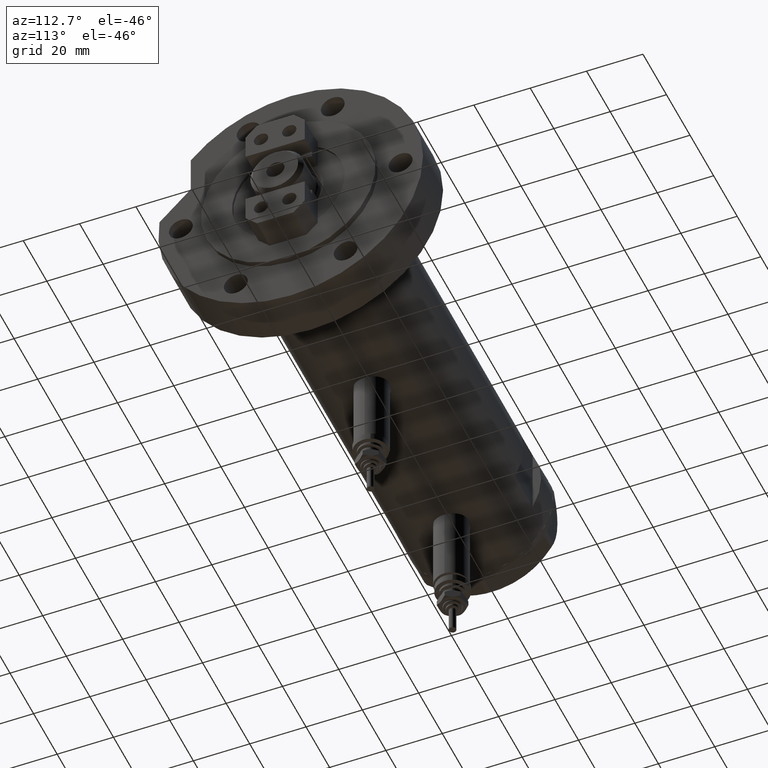
[diagram: clean part render]
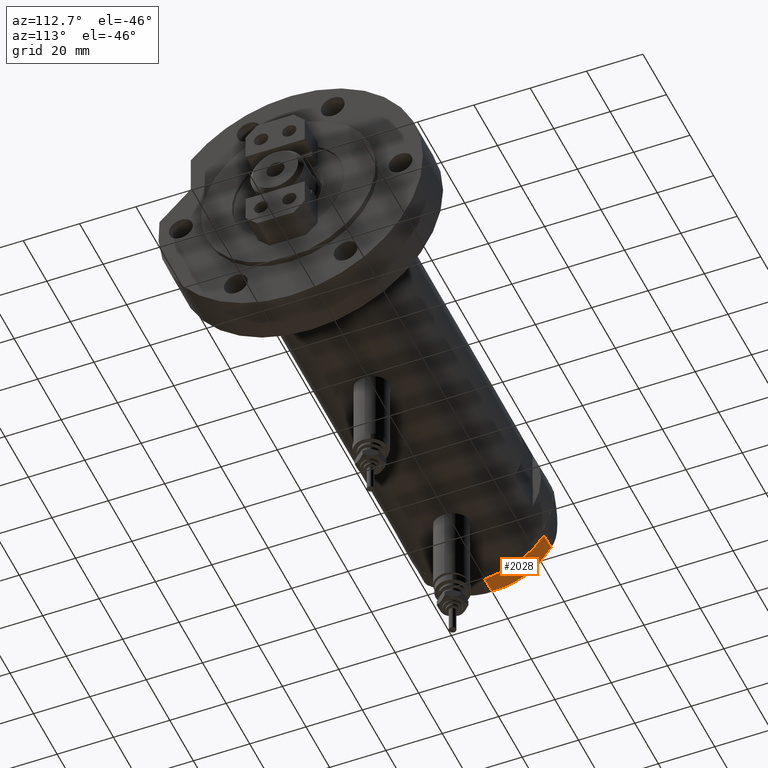
[diagram: same view with one face highlighted and labeled with its STEP entity id]
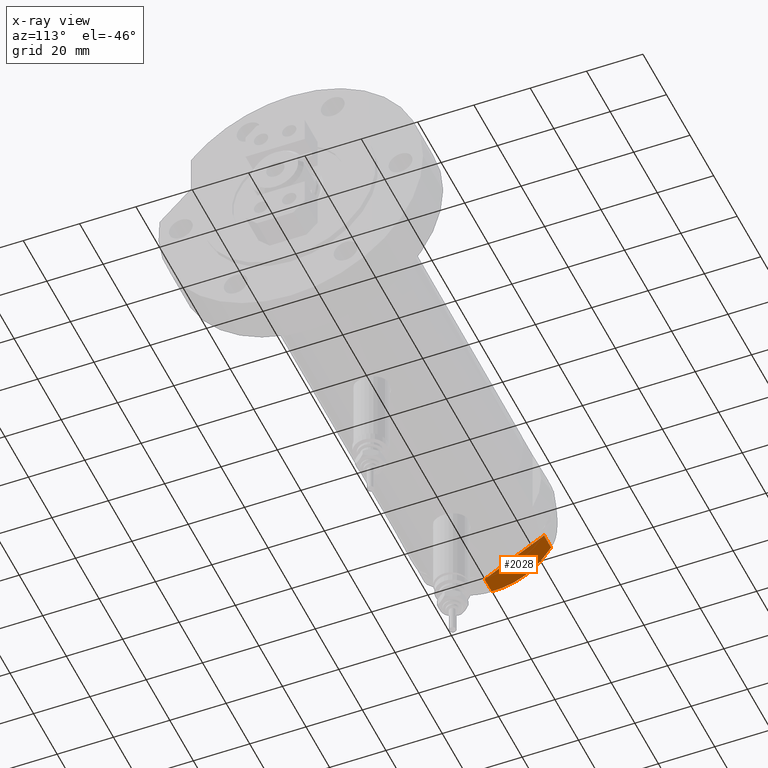
[diagram: x-ray of the same camera — body ghosted, the highlighted face saturated]
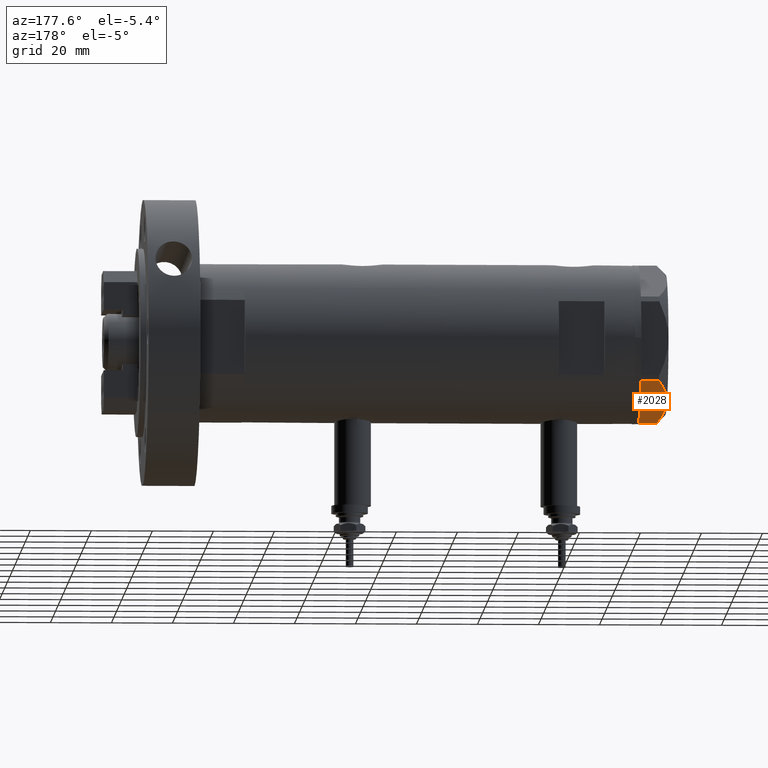
[diagram: same view with one face highlighted and labeled with its STEP entity id]
A machine part, auxiliary view. The second image highlights one B-rep face of the part: STEP entity #2028.
The next image is the same camera in x-ray: the body ghosted, the highlighted face saturated — about 0% of this face is hidden behind the body in this view.
A second angle (auxiliary view) of the same face is appended — the face is thin or edge-on in the first view.
In plain terms, the highlighted planar face has unit normal (0, -0.5, 0.866).
Its self-contained STEP definition (entity closure, byte-faithful):
#5 = CARTESIAN_POINT ( 'NONE',  ( 15.16323225988329959, 17.80361615569442790, 8.637313967156861949 ) ) ;
#106 = CARTESIAN_POINT ( 'NONE',  ( 22.99999999999981171, 13.27905619136164184, 0.000000000000000000 ) ) ;
#158 = CARTESIAN_POINT ( 'NONE',  ( 5.229981517798067081, 23.53858114556529912, 7.892128867758392730 ) ) ;
#159 = DIRECTION ( 'NONE',  ( 0.000000000000000000, 0.000000000000000000, 1.000000000000000000 ) ) ;
#458 = VECTOR ( 'NONE', #6216, 999.9999999999998863 ) ;
#518 = EDGE_CURVE ( 'NONE', #7526, #3192, #2818, .T. ) ;
#575 = AXIS2_PLACEMENT_3D ( 'NONE', #2478, #6710, #3245 ) ;
#617 = CARTESIAN_POINT ( 'NONE',  ( 7.884645426989626671, 22.00591022298560517, 8.707651728476925257 ) ) ;
#644 = CARTESIAN_POINT ( 'NONE',  ( 20.37350567916420019, 14.79546339452108050, 6.877782426143415506 ) ) ;
#656 = ORIENTED_EDGE ( 'NONE', *, *, #2633, .T. ) ;
#827 = LINE ( 'NONE', #106, #458 ) ;
#976 = VERTEX_POINT ( 'NONE', #4671 ) ;
#1235 = LINE ( 'NONE', #6672, #1868 ) ;
#1393 = CARTESIAN_POINT ( 'NONE',  ( 18.67981377008996446, 15.77331687414937278, 7.629374868826049649 ) ) ;
#1868 = VECTOR ( 'NONE', #7391, 999.9999999999998863 ) ;
#1963 = CARTESIAN_POINT ( 'NONE',  ( 22.03005154776138852, 13.83905619136154819, 5.983800287807532037 ) ) ;
#2017 = CARTESIAN_POINT ( 'NONE',  ( 12.41906678023027588, 19.38796083407295967, 8.981686407609410949 ) ) ;
#2028 = ADVANCED_FACE ( 'NONE', ( #7113 ), #6586, .F. ) ;
#2119 = LINE ( 'NONE', #6089, #2191 ) ;
#2191 = VECTOR ( 'NONE', #6766, 999.9999999999998863 ) ;
#2209 = CARTESIAN_POINT ( 'NONE',  ( 0.9699484522385767304, 25.99811238272274849, 5.983800287807627960 ) ) ;
#2478 = CARTESIAN_POINT ( 'NONE',  ( 22.99999999999981171, 13.27905619136164184, 9.000000000000000000 ) ) ;
#2633 = EDGE_CURVE ( 'NONE', #6245, #4212, #4809, .T. ) ;
#2664 = CARTESIAN_POINT ( 'NONE',  ( 13.34348161667005073, 18.85424967941157703, 8.907842277728345692 ) ) ;
#2818 = LINE ( 'NONE', #8220, #7503 ) ;
#2895 = CARTESIAN_POINT ( 'NONE',  ( 3.925137811030050994, 24.29193301091819635, 7.397272853991373687 ) ) ;
#3101 = EDGE_CURVE ( 'NONE', #3125, #976, #827, .T. ) ;
#3125 = VERTEX_POINT ( 'NONE', #8658 ) ;
#3136 = CARTESIAN_POINT ( 'NONE',  ( 22.03005154776124286, 13.83905619136163168, 0.000000000000000000 ) ) ;
#3154 = ORIENTED_EDGE ( 'NONE', *, *, #4234, .T. ) ;
#3192 = VERTEX_POINT ( 'NONE', #3136 ) ;
#3245 = DIRECTION ( 'NONE',  ( 0.8660254037844415942, -0.4999999999999949485, 0.000000000000000000 ) ) ;
#3267 = ORIENTED_EDGE ( 'NONE', *, *, #3101, .T. ) ;
#3811 = ORIENTED_EDGE ( 'NONE', *, *, #6466, .F. ) ;
#4178 = CARTESIAN_POINT ( 'NONE',  ( 2.640413878806739945, 25.03366871902167290, 6.844201024438365089 ) ) ;
#4212 = VERTEX_POINT ( 'NONE', #8002 ) ;
#4234 = EDGE_CURVE ( 'NONE', #3192, #3125, #1235, .T. ) ;
#4269 = CARTESIAN_POINT ( 'NONE',  ( 0.9699484522385816154, 25.99811238272274494, 0.000000000000000000 ) ) ;
#4671 = CARTESIAN_POINT ( 'NONE',  ( 0.9999999999999297229, 25.98076211353316722, 0.000000000000000000 ) ) ;
#4696 = CARTESIAN_POINT ( 'NONE',  ( 11.95865151389051917, 19.65378171203322566, 9.000000000000005329 ) ) ;
#4809 = LINE ( 'NONE', #5499, #5659 ) ;
#4860 = DIRECTION ( 'NONE',  ( 0.000000000000000000, 0.000000000000000000, -1.000000000000000000 ) ) ;
#4916 = ORIENTED_EDGE ( 'NONE', *, *, #6933, .F. ) ;
#5497 = CARTESIAN_POINT ( 'NONE',  ( 1.799196345396824492, 25.51934588838292228, 6.431317509509382191 ) ) ;
#5499 = CARTESIAN_POINT ( 'NONE',  ( 0.9699484522385816154, 25.99811238272274494, 9.000000000000000000 ) ) ;
#5534 = CARTESIAN_POINT ( 'NONE',  ( 4.357207709416038632, 24.04247733877631532, 7.570552255229681116 ) ) ;
#5659 = VECTOR ( 'NONE', #159, 1000.000000000000000 ) ;
#5673 = B_SPLINE_CURVE_WITH_KNOTS ( 'NONE', 3,
 ( #5947, #644, #1393, #8612, #5, #7973, #2664, #2017, #4696, #7406 ),
 .UNSPECIFIED., .F., .F.,
 ( 4, 2, 2, 2, 4 ),
 ( 0.001228959670438493522, 0.007497079744270714746, 0.01063113978118682655, 0.01219816979964488159, 0.01376519981810293489 ),
 .UNSPECIFIED. ) ;
#5753 = CARTESIAN_POINT ( 'NONE',  ( 11.49999999999990408, 19.91858428704219364, 9.000000000000000000 ) ) ;
#5760 = ORIENTED_EDGE ( 'NONE', *, *, #518, .T. ) ;
#5918 = EDGE_LOOP ( 'NONE', ( #3811, #5760, #3154, #3267, #7045, #656, #4916 ) ) ;
#5947 = CARTESIAN_POINT ( 'NONE',  ( 22.03005154776138852, 13.83905619136154819, 5.983800287807532037 ) ) ;
#6089 = CARTESIAN_POINT ( 'NONE',  ( 22.99999999999981171, 13.27905619136164184, 0.000000000000000000 ) ) ;
#6216 = DIRECTION ( 'NONE',  ( -0.8660254037844415942, 0.4999999999999949485, 0.000000000000000000 ) ) ;
#6245 = VERTEX_POINT ( 'NONE', #4269 ) ;
#6466 = EDGE_CURVE ( 'NONE', #7526, #6807, #5673, .T. ) ;
#6586 = PLANE ( 'NONE',  #575 ) ;
#6664 = CARTESIAN_POINT ( 'NONE',  ( 9.678244919010086988, 20.97037507344920826, 9.000000000000001776 ) ) ;
#6672 = CARTESIAN_POINT ( 'NONE',  ( 22.99999999999981171, 13.27905619136164184, 0.000000000000000000 ) ) ;
#6710 = DIRECTION ( 'NONE',  ( -0.4999999999999949485, -0.8660254037844415942, 0.000000000000000000 ) ) ;
#6766 = DIRECTION ( 'NONE',  ( -0.8660254037844415942, 0.4999999999999949485, 0.000000000000000000 ) ) ;
#6807 = VERTEX_POINT ( 'NONE', #5753 ) ;
#6933 = EDGE_CURVE ( 'NONE', #6807, #4212, #7553, .T. ) ;
#7045 = ORIENTED_EDGE ( 'NONE', *, *, #7928, .T. ) ;
#7113 = FACE_OUTER_BOUND ( 'NONE', #5918, .T. ) ;
#7335 = CARTESIAN_POINT ( 'NONE',  ( 11.49999999999990408, 19.91858428704219364, 9.000000000000000000 ) ) ;
#7391 = DIRECTION ( 'NONE',  ( -0.8660254037844415942, 0.4999999999999949485, 0.000000000000000000 ) ) ;
#7406 = CARTESIAN_POINT ( 'NONE',  ( 11.49999999999990408, 19.91858428704219364, 9.000000000000000000 ) ) ;
#7503 = VECTOR ( 'NONE', #4860, 1000.000000000000000 ) ;
#7526 = VERTEX_POINT ( 'NONE', #1963 ) ;
#7553 = B_SPLINE_CURVE_WITH_KNOTS ( 'NONE', 3,
 ( #7335, #6664, #617, #8554, #158, #5534, #2895, #4178, #5497, #2209 ),
 .UNSPECIFIED., .F., .F.,
 ( 4, 2, 2, 2, 4 ),
 ( 0.01376519981810293489, 0.01998941321701561136, 0.02154546656674377961, 0.02310151991647194786, 0.02621362661592828783 ),
 .UNSPECIFIED. ) ;
#7928 = EDGE_CURVE ( 'NONE', #976, #6245, #2119, .T. ) ;
#7973 = CARTESIAN_POINT ( 'NONE',  ( 13.80210138309697498, 18.58946543380931260, 8.852712638955710034 ) ) ;
#8002 = CARTESIAN_POINT ( 'NONE',  ( 0.9699484522385767304, 25.99811238272274849, 5.983800287807627960 ) ) ;
#8220 = CARTESIAN_POINT ( 'NONE',  ( 22.03005154776124286, 13.83905619136163168, 9.000000000000000000 ) ) ;
#8554 = CARTESIAN_POINT ( 'NONE',  ( 5.671686373602799591, 23.28356272816407824, 8.040681765829278405 ) ) ;
#8612 = CARTESIAN_POINT ( 'NONE',  ( 16.05322244309623869, 17.28978008384030929, 8.426899937603700153 ) ) ;
#8658 = CARTESIAN_POINT ( 'NONE',  ( 21.99999999999987210, 13.85640646055121827, 0.000000000000000000 ) ) ;